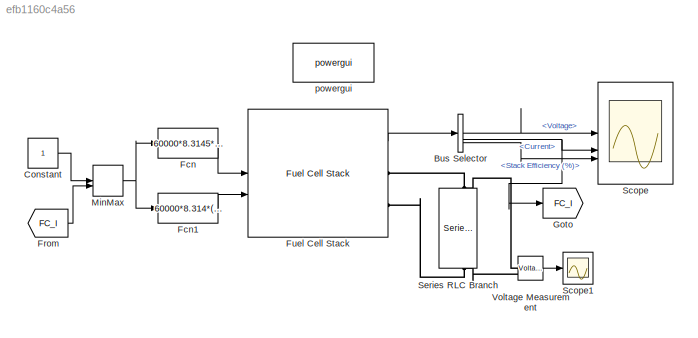
MODEL slx_efb1160c4a56
KIND model
CONFIG AbsTol = auto
CONFIG EnableMultiTasking = off
CONFIG FixedStep = auto
CONFIG MaxStep = auto
CONFIG MinStep = auto
CONFIG RelTol = 1e-3
CONFIG SampleTimeConstraint = Unconstrained
CONFIG SolverName = VariableStepAuto
CONFIG StartTime = 0.0
CONFIG StopTime = 7
BLOCK [BusSelector] Bus Selector
  OutputSignals = Voltage,Current,Stack Efficiency (%)
BLOCK [Constant] Constant
BLOCK [Fcn] Fcn
  Expr = 60000*8.3145*(273+95)*400*u(1)/(2*96485*(3*101325)*0.919*0.995)
BLOCK [Fcn] Fcn1
  Expr = 60000*8.314*(273+95)*400*u(1)/(4*96485*(3*101325)*0.5057*0.21)
BLOCK [From] From
  GotoTag = FC_I
BLOCK [Reference] Fuel Cell Stack  REF=spsFuelCellStackLib/Fuel Cell Stack
  LibrarySourceBlock = sps_lib/Sources/Fuel Cell Stack
  SourceBlock = spsFuelCellStackLib/Fuel Cell Stack
  SourceType = Fuel Cell Stack
BLOCK [Goto] Goto
  GotoTag = FC_I
BLOCK [MinMax] MinMax
  Function = max
  Inputs = 2
BLOCK [Scope] Scope
  Floating = off
  NumInputPorts = 3
  ScopeSpecificationString = Simulink.scopes.TimeScopeBlockCfg('CurrentConfiguration', extmgr.ConfigurationSet(extmgr.Configuration('Core','General UI',true),extmgr.Configuration('Core','Source UI',true),extmgr.Configuration('Sources','WiredSimulink',true),extmgr.Configuration('Visuals','Time Domain',true,'SerializedDisplays',{struct('MinYLimReal','68.82609','MaxYLimReal','70.04928','YLabelReal','','MinYLimMag','68.82609','Ma...<+2724ch>
BLOCK [Scope] Scope1
  Floating = off
  NumInputPorts = 1
  ScopeSpecificationString = Simulink.scopes.TimeScopeBlockCfg('CurrentConfiguration', extmgr.ConfigurationSet(extmgr.Configuration('Core','General UI',true),extmgr.Configuration('Core','Source UI',true),extmgr.Configuration('Sources','WiredSimulink',true,'DataLoggingVariableName','ScopeData1'),extmgr.Configuration('Visuals','Time Domain',true,'SerializedDisplays',{struct('MinYLimReal','-8.69335','MaxYLimReal','78.25893','YLa...<+1382ch>
BLOCK [Reference] Series RLC Branch  REF=spsSeriesRLCBranchLib/Series RLC Branch
  LibrarySourceBlock = sps_lib/Passives/Series RLC Branch
  NameLocation = left
  SourceBlock = spsSeriesRLCBranchLib/Series RLC Branch
  SourceType = Series RLC Branch
BLOCK [Reference] Voltage Measurement  REF=spsVoltageMeasurementLib/Voltage Measurement
  LibrarySourceBlock = sps_lib/Sensors and Measurements/Voltage Measurement
  SourceBlock = spsVoltageMeasurementLib/Voltage Measurement
  SourceType = Voltage Measurement
  UserDataPersistent = on
BLOCK [Reference] powergui  REF=sps_lib/powergui
  Priority = 1
  SourceBlock = sps_lib/powergui
  SourceType = PSB option menu block
LINE Bus Selector:1 -> Scope:1
NET Bus Selector:2 -> Goto:1, Scope:2
LINE Bus Selector:3 -> Scope:3
LINE Constant:1 -> MinMax:1
LINE Fcn1:1 -> Fuel Cell Stack:2
LINE Fcn:1 -> Fuel Cell Stack:1
LINE From:1 -> MinMax:2
LINE Fuel Cell Stack:1 -> Bus Selector:1
NET MinMax:1 -> Fcn1:1, Fcn:1
LINE Voltage Measurement:1 -> Scope1:1
PNET net1: Fuel Cell Stack:RConn1 -- Series RLC Branch:LConn1 -- Voltage Measurement:LConn1
PNET net2: Fuel Cell Stack:RConn2 -- Series RLC Branch:RConn1 -- Voltage Measurement:LConn2
note: NET lines group one-source signal fan-out (src -> all destinations, sorted); 1:1 wires keep LINE; PNET lines group multi-terminal physical nets as a canonical sorted terminal list (undirected conserving connections); 2-terminal nets keep the pairwise PLINE form
